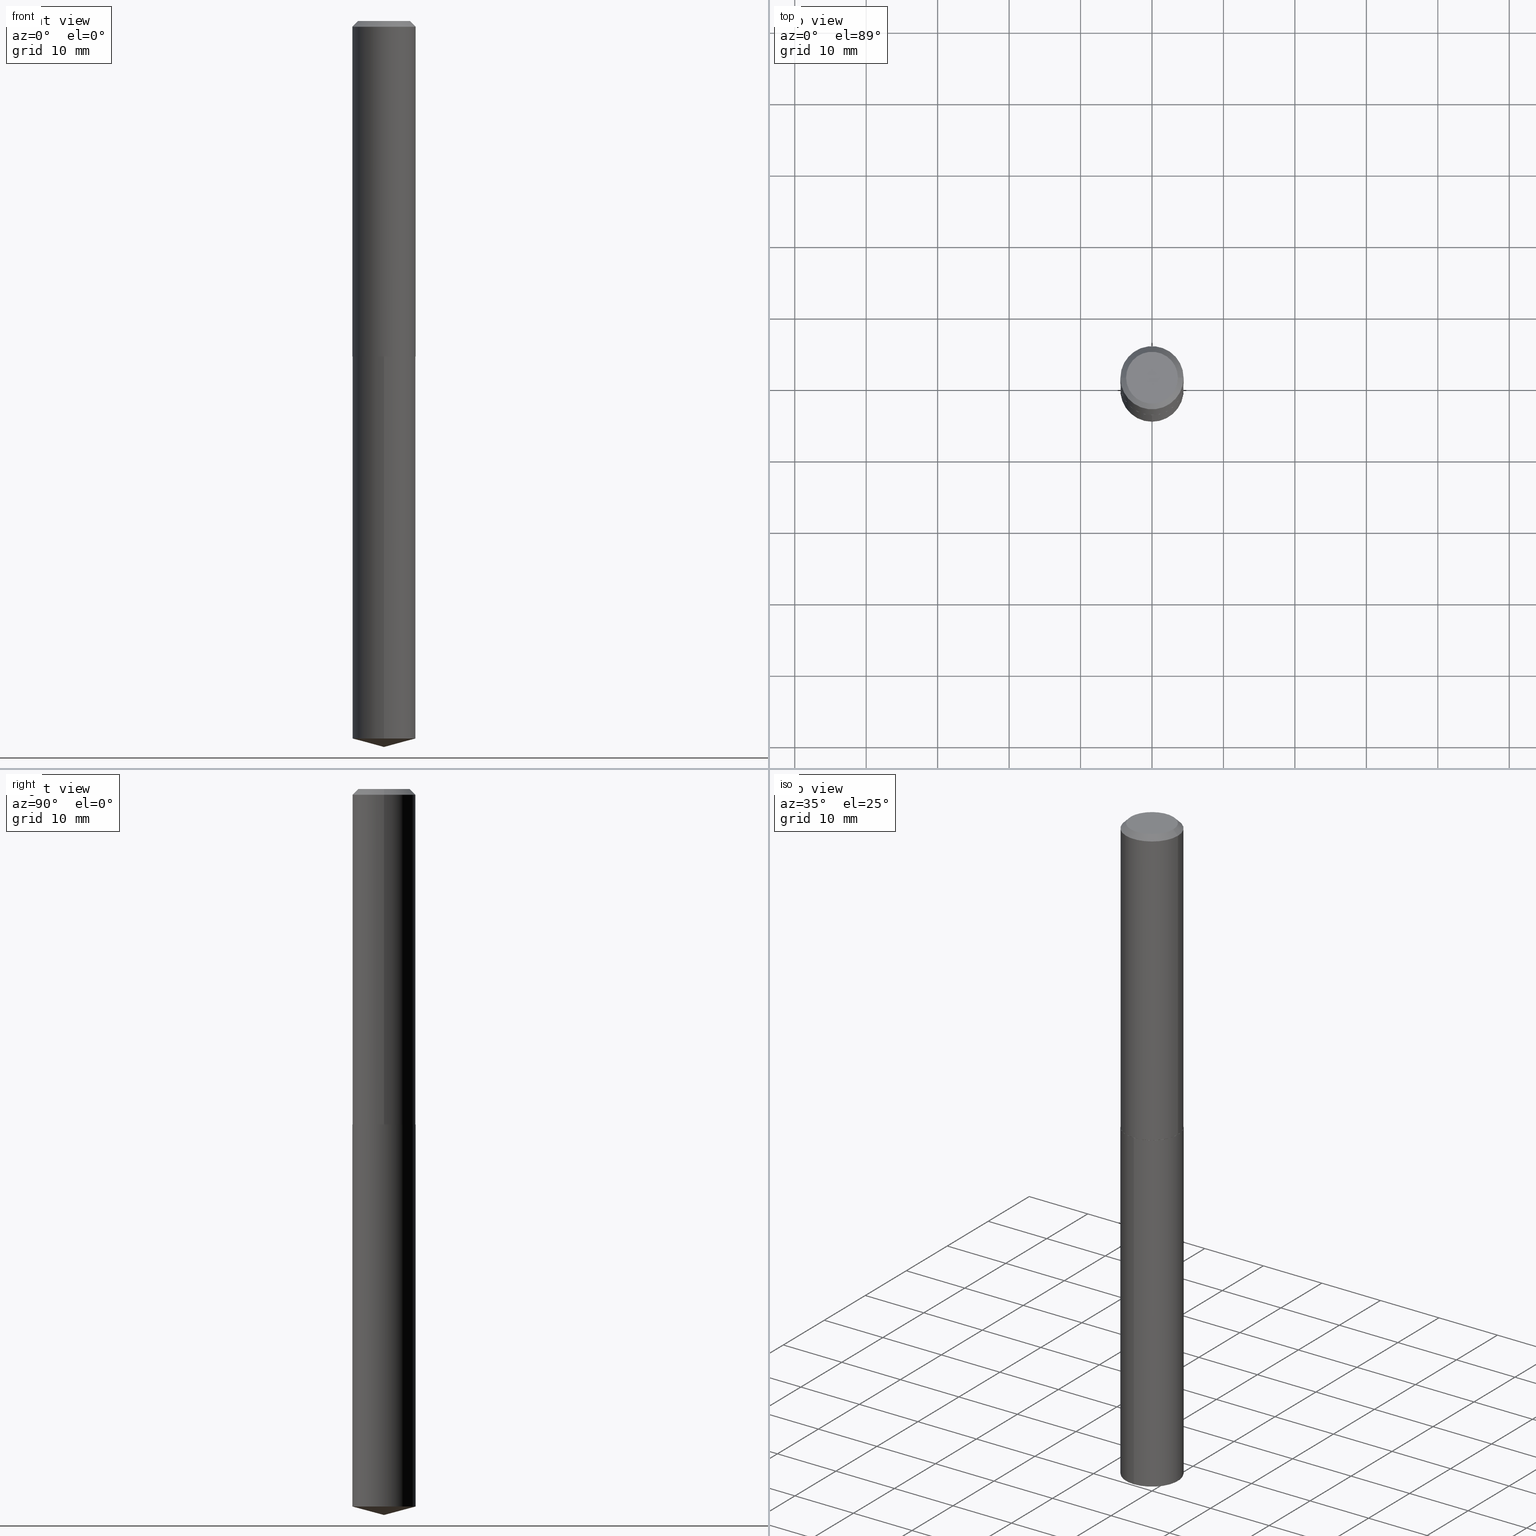
[diagram: canonical four-view strip — front | top / right | iso, engineering-drawing reading convention]
A machine part, canonical four-view strip (front | top / right | iso — engineering-drawing reading convention). The complete STEP part file that produces these views, byte-faithful:
ISO-10303-21;
HEADER;
FILE_DESCRIPTION (( 'STEP AP203' ),
    '1' );
FILE_NAME ('58081.STEP',
    '2024-04-23T01:34:33',
    ( '' ),
    ( '' ),
    'SwSTEP 2.0',
    'SolidWorks 2023',
    '' );
FILE_SCHEMA (( 'CONFIG_CONTROL_DESIGN' ));
ENDSEC;

DATA;
#1 = DIRECTION ( 'NONE',  ( 6.863315791527699781E-15, 0.9659258262890701996, 0.2588190451025136896 ) ) ;
#2 = LINE ( 'NONE', #281, #349 ) ;
#3 =( NAMED_UNIT ( * ) PLANE_ANGLE_UNIT ( ) SI_UNIT ( $, .RADIAN. ) );
#4 = EDGE_LOOP ( 'NONE', ( #314, #303, #30, #224 ) ) ;
#5 = CIRCLE ( 'NONE', #384, 0.1739999999999999880 ) ;
#6 = CARTESIAN_POINT ( 'NONE',  ( 1.236344360222670676E-15, 0.1739999999999935210, -1.848000000000000309 ) ) ;
#7 = LINE ( 'NONE', #128, #267 ) ;
#8 = ORIENTED_EDGE ( 'NONE', *, *, #183, .F. ) ;
#9 = CC_DESIGN_DATE_AND_TIME_ASSIGNMENT ( #321, #371, ( #47 ) ) ;
#10 = DIRECTION ( 'NONE',  ( 2.445482700647825412E-29, -3.491461441181750985E-15, -1.000000000000000000 ) ) ;
#11 = AXIS2_PLACEMENT_3D ( 'NONE', #24, #149, #271 ) ;
#12 = ORGANIZATION ( 'UNSPECIFIED', 'UNSPECIFIED', '' ) ;
#13 = CALENDAR_DATE ( 2024, 22, 4 ) ;
#14 = DIRECTION ( 'NONE',  ( -2.445468806185136597E-29, 3.491481338843145583E-15, 1.000000000000000000 ) ) ;
#15 = PERSON_AND_ORGANIZATION_ROLE ( 'creator' ) ;
#16 = DIRECTION ( 'NONE',  ( -2.445468806185136597E-29, 3.491481338843145583E-15, 1.000000000000000000 ) ) ;
#17 = DIRECTION ( 'NONE',  ( 1.000000000000000000, -6.982962677686265922E-15, 0.000000000000000000 ) ) ;
#18 = CIRCLE ( 'NONE', #245, 0.1740000000000002101 ) ;
#19 = PERSON_AND_ORGANIZATION ( #87, #12 ) ;
#20 = CC_DESIGN_APPROVAL ( #68, ( #47 ) ) ;
#21 = CARTESIAN_POINT ( 'NONE',  ( 0.000000000000000000, 0.000000000000000000, 0.000000000000000000 ) ) ;
#22 = CARTESIAN_POINT ( 'NONE',  ( 4.519226353830132171E-29, -6.452257514182132781E-15, -1.847999999999999865 ) ) ;
#23 = ADVANCED_FACE ( 'NONE', ( #256 ), #93, .T. ) ;
#24 = CARTESIAN_POINT ( 'NONE',  ( 0.000000000000000000, 0.000000000000000000, 0.000000000000000000 ) ) ;
#25 = LINE ( 'NONE', #244, #329 ) ;
#26 = CIRCLE ( 'NONE', #136, 0.1427499999999999603 ) ;
#27 = VERTEX_POINT ( 'NONE', #160 ) ;
#28 = MANIFOLD_SOLID_BREP ( 'Body-Move/Copy2[2]', #365 ) ;
#29 = DIRECTION ( 'NONE',  ( -2.445482700647825692E-29, 3.491461441181750985E-15, 1.000000000000000000 ) ) ;
#30 = ORIENTED_EDGE ( 'NONE', *, *, #385, .T. ) ;
#31 = CIRCLE ( 'NONE', #162, 0.1739999999999999880 ) ;
#32 = DIRECTION ( 'NONE',  ( -2.445482700647825692E-29, 3.491461441181750985E-15, 1.000000000000000000 ) ) ;
#33 = DIRECTION ( 'NONE',  ( -1.000000000000000000, 6.982962677686266711E-15, 0.000000000000000000 ) ) ;
#34 = DIRECTION ( 'NONE',  ( 1.000000000000000000, -6.982962677686266711E-15, 0.000000000000000000 ) ) ;
#35 = ORIENTED_EDGE ( 'NONE', *, *, #116, .F. ) ;
#36 = CARTESIAN_POINT ( 'NONE',  ( -0.1740000000000000990, 1.236344360222575027E-15, -8.558947057043541363E-30 ) ) ;
#37 = PRODUCT_DEFINITION_SHAPE ( 'NONE', 'NONE',  #47 ) ;
#38 = LENGTH_MEASURE_WITH_UNIT ( LENGTH_MEASURE( 0.02539999999999999897 ), #126 );
#39 = ORIENTED_EDGE ( 'NONE', *, *, #262, .T. ) ;
#40 = EDGE_CURVE ( 'NONE', #94, #62, #2, .T. ) ;
#41 = APPROVAL_DATE_TIME ( #235, #68 ) ;
#42 = FACE_OUTER_BOUND ( 'NONE', #340, .T. ) ;
#43 = PERSON_AND_ORGANIZATION ( #87, #12 ) ;
#44 = DIRECTION ( 'NONE',  ( -6.982962677686265133E-15, -1.000000000000000000, 3.140055165131337128E-15 ) ) ;
#45 = AXIS2_PLACEMENT_3D ( 'NONE', #178, #234, #352 ) ;
#46 =( GEOMETRIC_REPRESENTATION_CONTEXT ( 3 ) GLOBAL_UNCERTAINTY_ASSIGNED_CONTEXT ( ( #111 ) ) GLOBAL_UNIT_ASSIGNED_CONTEXT ( ( #167, #3, #248 ) ) REPRESENTATION_CONTEXT ( 'NONE', 'WORKASPACE' ) );
#47 = PRODUCT_DEFINITION ( 'UNKNOWN', '', #246, #107 ) ;
#48 = DATE_AND_TIME ( #209, #380 ) ;
#49 = DIRECTION ( 'NONE',  ( -6.745023994389845444E-15, -0.9659258262890684232, 0.2588190451025204619 ) ) ;
#50 = DATE_TIME_ROLE ( 'classification_date' ) ;
#51 = DIRECTION ( 'NONE',  ( -1.000000000000000000, 6.982962677686266711E-15, 0.000000000000000000 ) ) ;
#52 = APPROVAL_ROLE ( '' ) ;
#53 = DIRECTION ( 'NONE',  ( -2.445468806185136597E-29, 3.491481338843145583E-15, 1.000000000000000000 ) ) ;
#54 = AXIS2_PLACEMENT_3D ( 'NONE', #66, #311, #33 ) ;
#55 = CARTESIAN_POINT ( 'NONE',  ( -1.215035505917364906E-15, -0.1740000000000064273, -1.847999999999999199 ) ) ;
#56 = APPROVAL ( #145, 'UNSPECIFIED' ) ;
#57 = DIRECTION ( 'NONE',  ( -2.438088387897960049E-29, 3.491481338843145188E-15, 1.000000000000000000 ) ) ;
#58 = ORIENTED_EDGE ( 'NONE', *, *, #155, .F. ) ;
#59 = CLOSED_SHELL ( 'NONE', ( #171, #372, #144, #282, #188 ) ) ;
#60 = EDGE_CURVE ( 'NONE', #182, #27, #127, .T. ) ;
#61 = AXIS2_PLACEMENT_3D ( 'NONE', #274, #238, #213 ) ;
#62 = VERTEX_POINT ( 'NONE', #362 ) ;
#63 = EDGE_LOOP ( 'NONE', ( #58, #335, #221, #242 ) ) ;
#64 = DIRECTION ( 'NONE',  ( -2.445482700647825692E-29, 3.491461441181750985E-15, 1.000000000000000000 ) ) ;
#65 = CARTESIAN_POINT ( 'NONE',  ( 7.642090019328602662E-31, -1.091087918388490267E-16, -0.03125000000000020817 ) ) ;
#66 = CARTESIAN_POINT ( 'NONE',  ( 7.642090019328602662E-31, -1.091087918388490267E-16, -0.03125000000000020817 ) ) ;
#67 = CC_DESIGN_APPROVAL ( #56, ( #88 ) ) ;
#68 = APPROVAL ( #172, 'UNSPECIFIED' ) ;
#69 = CARTESIAN_POINT ( 'NONE',  ( -8.649694135657361817E-28, 1.234932293219440106E-13, 35.37007874015748143 ) ) ;
#70 = CARTESIAN_POINT ( 'NONE',  ( 9.781930802591302767E-29, -1.396584576472700394E-14, -4.000000000000000000 ) ) ;
#71 = APPLICATION_PROTOCOL_DEFINITION ( 'international standard', 'config_control_design', 1994, #133 ) ;
#72 = ORIENTED_EDGE ( 'NONE', *, *, #155, .T. ) ;
#73 = ADVANCED_FACE ( 'NONE', ( #252 ), #309, .T. ) ;
#74 = EDGE_LOOP ( 'NONE', ( #361, #185, #200, #327 ) ) ;
#75 = EDGE_LOOP ( 'NONE', ( #285, #101, #289 ) ) ;
#76 = PERSON_AND_ORGANIZATION ( #87, #12 ) ;
#77 = FACE_OUTER_BOUND ( 'NONE', #89, .T. ) ;
#78 = DIRECTION ( 'NONE',  ( 1.000000000000000000, -6.982962677686267499E-15, 4.876176775795936914E-29 ) ) ;
#79 = AXIS2_PLACEMENT_3D ( 'NONE', #22, #29, #353 ) ;
#80 = APPROVAL_PERSON_ORGANIZATION ( #43, #56, #52 ) ;
#81 = LINE ( 'NONE', #208, #300 ) ;
#82 = APPROVAL_DATE_TIME ( #175, #56 ) ;
#83 = FACE_OUTER_BOUND ( 'NONE', #370, .T. ) ;
#84 = PLANE ( 'NONE',  #225 ) ;
#85 = APPROVAL ( #108, 'UNSPECIFIED' ) ;
#86 = VECTOR ( 'NONE', #360, 39.37007874015748143 ) ;
#87 = PERSON ( 'UNSPECIFIED', 'UNSPECIFIED', 'UNSPECIFIED', ('UNSPECIFIED'), ('UNSPECIFIED'), ('UNSPECIFIED') ) ;
#88 = SECURITY_CLASSIFICATION ( '', '', #316 ) ;
#89 = EDGE_LOOP ( 'NONE', ( #356, #368 ) ) ;
#90 = EDGE_LOOP ( 'NONE', ( #312, #72, #216, #336 ) ) ;
#91 = EDGE_CURVE ( 'NONE', #62, #358, #7, .T. ) ;
#92 = ORIENTED_EDGE ( 'NONE', *, *, #138, .F. ) ;
#93 = CONICAL_SURFACE ( 'NONE', #305, 0.1740000000000002101, 0.7853981633972775267 ) ;
#94 = VERTEX_POINT ( 'NONE', #70 ) ;
#95 = CC_DESIGN_PERSON_AND_ORGANIZATION_ASSIGNMENT ( #342, #268, ( #88 ) ) ;
#96 = VECTOR ( 'NONE', #232, 39.37007874015748143 ) ;
#97 = CARTESIAN_POINT ( 'NONE',  ( 0.1740000000000002101, -7.665547279430124304E-15, -1.847499999999999920 ) ) ;
#98 = CC_DESIGN_APPROVAL ( #85, ( #246 ) ) ;
#99 = DIMENSIONAL_EXPONENTS ( 1.000000000000000000, 0.000000000000000000, 0.000000000000000000, 0.000000000000000000, 0.000000000000000000, 0.000000000000000000, 0.000000000000000000 ) ;
#100 = CARTESIAN_POINT ( 'NONE',  ( 9.667888995658995842E-29, -1.380309957200424853E-14, -3.953376840516985347 ) ) ;
#101 = ORIENTED_EDGE ( 'NONE', *, *, #194, .T. ) ;
#102 = VERTEX_POINT ( 'NONE', #97 ) ;
#103 = COORDINATED_UNIVERSAL_TIME_OFFSET ( 5, 0, .BEHIND. ) ;
#104 = DIRECTION ( 'NONE',  ( -2.445468806185136597E-29, 3.491481338843145583E-15, 1.000000000000000000 ) ) ;
#105 = CONICAL_SURFACE ( 'NONE', #45, 146.9311341562572579, 1.308996938995750980 ) ;
#106 = CC_DESIGN_SECURITY_CLASSIFICATION ( #88, ( #246 ) ) ;
#107 = DESIGN_CONTEXT ( 'detailed design', #302, 'design' ) ;
#108 = APPROVAL_STATUS ( 'not_yet_approved' ) ;
#109 = CARTESIAN_POINT ( 'NONE',  ( 4.519226353830132171E-29, -6.452257514182132781E-15, -1.847999999999999865 ) ) ;
#110 = LINE ( 'NONE', #298, #354 ) ;
#111 = UNCERTAINTY_MEASURE_WITH_UNIT (LENGTH_MEASURE( 1.000000000000000082E-05 ), #167, 'distance_accuracy_value', 'NONE');
#112 = DIRECTION ( 'NONE',  ( -2.445482700647825692E-29, 3.491461441181750985E-15, 1.000000000000000000 ) ) ;
#113 = AXIS2_PLACEMENT_3D ( 'NONE', #320, #53, #117 ) ;
#114 = AXIS2_PLACEMENT_3D ( 'NONE', #65, #191, #34 ) ;
#115 = CARTESIAN_POINT ( 'NONE',  ( -1.215035505917313236E-15, -0.1740000000000137270, -3.953376840516984903 ) ) ;
#116 = EDGE_CURVE ( 'NONE', #218, #62, #31, .T. ) ;
#117 = DIRECTION ( 'NONE',  ( 1.000000000000000000, -6.982962677686266711E-15, 0.000000000000000000 ) ) ;
#118 = PLANE ( 'NONE',  #180 ) ;
#119 = AXIS2_PLACEMENT_3D ( 'NONE', #230, #345, #51 ) ;
#120 = CARTESIAN_POINT ( 'NONE',  ( 4.518003619427039369E-29, -6.450511773512711278E-15, -1.847499999999999920 ) ) ;
#121 = ADVANCED_FACE ( 'NONE', ( #323 ), #142, .F. ) ;
#122 = ORIENTED_EDGE ( 'NONE', *, *, #276, .F. ) ;
#123 = CARTESIAN_POINT ( 'NONE',  ( 0.1427499999999999603, -1.141085766316490663E-15, 2.571758278284192552E-19 ) ) ;
#124 = CIRCLE ( 'NONE', #341, 0.1735000000000002096 ) ;
#125 = CC_DESIGN_PERSON_AND_ORGANIZATION_ASSIGNMENT ( #257, #376, ( #169 ) ) ;
#126 =( LENGTH_UNIT ( ) NAMED_UNIT ( * ) SI_UNIT ( $, .METRE. ) );
#127 = LINE ( 'NONE', #36, #286 ) ;
#128 = CARTESIAN_POINT ( 'NONE',  ( 1.236344360222619006E-15, 0.1739999999999935210, -1.848000000000000309 ) ) ;
#129 = DIRECTION ( 'NONE',  ( 1.000000000000000000, 0.000000000000000000, 0.000000000000000000 ) ) ;
#130 = AXIS2_PLACEMENT_3D ( 'NONE', #21, #348, #78 ) ;
#131 = DIRECTION ( 'NONE',  ( -2.445468806185136877E-29, 3.491481338843145188E-15, 1.000000000000000000 ) ) ;
#132 = CARTESIAN_POINT ( 'NONE',  ( 4.518003619427039369E-29, -6.450511773512711278E-15, -1.847499999999999920 ) ) ;
#133 = APPLICATION_CONTEXT ( 'configuration controlled 3d designs of mechanical parts and assemblies' ) ;
#134 = ORIENTED_EDGE ( 'NONE', *, *, #276, .T. ) ;
#135 = LINE ( 'NONE', #204, #272 ) ;
#136 = AXIS2_PLACEMENT_3D ( 'NONE', #375, #14, #269 ) ;
#137 = PERSON_AND_ORGANIZATION ( #87, #12 ) ;
#138 = EDGE_CURVE ( 'NONE', #288, #358, #186, .T. ) ;
#139 = DIRECTION ( 'NONE',  ( -2.445468806185136597E-29, 3.491481338843145583E-15, 1.000000000000000000 ) ) ;
#140 = DIRECTION ( 'NONE',  ( -2.445482700647825972E-29, 3.491461441181750985E-15, 1.000000000000000000 ) ) ;
#141 = COORDINATED_UNIVERSAL_TIME_OFFSET ( 5, 0, .BEHIND. ) ;
#142 = PLANE ( 'NONE',  #240 ) ;
#143 = AXIS2_PLACEMENT_3D ( 'NONE', #261, #237, #179 ) ;
#144 = ADVANCED_FACE ( 'NONE', ( #173 ), #105, .T. ) ;
#145 = APPROVAL_STATUS ( 'not_yet_approved' ) ;
#146 = CARTESIAN_POINT ( 'NONE',  ( 4.518003619427039369E-29, -6.450511773512711278E-15, -1.847499999999999920 ) ) ;
#147 = DIRECTION ( 'NONE',  ( 1.000000000000000000, -6.982962677686265922E-15, 4.876176775795935793E-29 ) ) ;
#148 = EDGE_CURVE ( 'NONE', #283, #247, #251, .T. ) ;
#149 = DIRECTION ( 'NONE',  ( -2.445468806185136597E-29, 3.491481338843145583E-15, 1.000000000000000000 ) ) ;
#150 = CONICAL_SURFACE ( 'NONE', #306, 146.9311341562572579, 1.308996938995750980 ) ;
#151 = CARTESIAN_POINT ( 'NONE',  ( -0.1735000000000002096, -5.216816640464247057E-15, -1.848000000000000087 ) ) ;
#152 = CARTESIAN_POINT ( 'NONE',  ( 2.487343155591107533E-29, -9.362029901670060756E-15, -1.848000000000000087 ) ) ;
#153 = FACE_OUTER_BOUND ( 'NONE', #74, .T. ) ;
#154 = EDGE_LOOP ( 'NONE', ( #219, #386, #197, #122 ) ) ;
#155 = EDGE_CURVE ( 'NONE', #283, #182, #81, .T. ) ;
#156 = ORIENTED_EDGE ( 'NONE', *, *, #202, .F. ) ;
#157 = ORIENTED_EDGE ( 'NONE', *, *, #346, .T. ) ;
#158 = CARTESIAN_POINT ( 'NONE',  ( 0.000000000000000000, 0.000000000000000000, 0.000000000000000000 ) ) ;
#159 = EDGE_CURVE ( 'NONE', #275, #243, #26, .T. ) ;
#160 = CARTESIAN_POINT ( 'NONE',  ( -0.1739999999999999880, -2.043465922453203979E-15, -0.03125000000000020817 ) ) ;
#161 = DIRECTION ( 'NONE',  ( -2.445468806185136597E-29, 3.491481338843145583E-15, 1.000000000000000000 ) ) ;
#162 = AXIS2_PLACEMENT_3D ( 'NONE', #165, #112, #44 ) ;
#163 = MANIFOLD_SOLID_BREP ( 'Body-Move/Copy2[1]', #59 ) ;
#164 = AXIS2_PLACEMENT_3D ( 'NONE', #158, #284, #129 ) ;
#165 = CARTESIAN_POINT ( 'NONE',  ( 9.667888995658995842E-29, -1.380309957200424853E-14, -3.953376840516985347 ) ) ;
#166 = APPROVAL_PERSON_ORGANIZATION ( #137, #85, #265 ) ;
#167 =( CONVERSION_BASED_UNIT ( 'INCH', #38 ) LENGTH_UNIT ( ) NAMED_UNIT ( #99 ) );
#168 = ORIENTED_EDGE ( 'NONE', *, *, #159, .F. ) ;
#169 = PRODUCT ( '58081', '58081', '', ( #196 ) ) ;
#170 = DIRECTION ( 'NONE',  ( -2.445482700647825692E-29, 3.491461441181750985E-15, 1.000000000000000000 ) ) ;
#171 = ADVANCED_FACE ( 'NONE', ( #42 ), #266, .T. ) ;
#172 = APPROVAL_STATUS ( 'not_yet_approved' ) ;
#173 = FACE_OUTER_BOUND ( 'NONE', #75, .T. ) ;
#174 = CIRCLE ( 'NONE', #378, 0.1740000000000002101 ) ;
#175 = DATE_AND_TIME ( #292, #366 ) ;
#176 = DIRECTION ( 'NONE',  ( 1.000000000000000000, -6.982962677686269077E-15, 0.000000000000000000 ) ) ;
#177 = COORDINATED_UNIVERSAL_TIME_OFFSET ( 5, 0, .BEHIND. ) ;
#178 = CARTESIAN_POINT ( 'NONE',  ( -8.649694135657361817E-28, 1.234932293219440106E-13, 35.37007874015748143 ) ) ;
#179 = DIRECTION ( 'NONE',  ( -6.982962677686265133E-15, -1.000000000000000000, 3.140055165131337128E-15 ) ) ;
#180 = AXIS2_PLACEMENT_3D ( 'NONE', #152, #57, #147 ) ;
#181 = CYLINDRICAL_SURFACE ( 'NONE', #11, 0.1740000000000000990 ) ;
#182 = VERTEX_POINT ( 'NONE', #322 ) ;
#183 = EDGE_CURVE ( 'NONE', #27, #193, #199, .T. ) ;
#184 = FACE_OUTER_BOUND ( 'NONE', #315, .T. ) ;
#185 = ORIENTED_EDGE ( 'NONE', *, *, #359, .T. ) ;
#186 = CIRCLE ( 'NONE', #143, 0.1739999999999999880 ) ;
#187 = ORIENTED_EDGE ( 'NONE', *, *, #194, .F. ) ;
#188 = ADVANCED_FACE ( 'NONE', ( #77 ), #84, .F. ) ;
#189 = CARTESIAN_POINT ( 'NONE',  ( -0.1739999999999999880, 1.105926714078561165E-15, -0.03125000000000020817 ) ) ;
#190 = CONICAL_SURFACE ( 'NONE', #61, 0.1740000000000002101, 0.7853981633972775267 ) ;
#191 = DIRECTION ( 'NONE',  ( -2.445468806185136597E-29, 3.491481338843145583E-15, 1.000000000000000000 ) ) ;
#192 = LOCAL_TIME ( 21, 34, 33.00000000000000000, #347 ) ;
#193 = VERTEX_POINT ( 'NONE', #377 ) ;
#194 = EDGE_CURVE ( 'NONE', #94, #218, #135, .T. ) ;
#195 = EDGE_LOOP ( 'NONE', ( #157, #222 ) ) ;
#196 = MECHANICAL_CONTEXT ( 'NONE', #133, 'mechanical' ) ;
#197 = ORIENTED_EDGE ( 'NONE', *, *, #388, .F. ) ;
#198 = FACE_OUTER_BOUND ( 'NONE', #343, .T. ) ;
#199 = CIRCLE ( 'NONE', #113, 0.1739999999999999880 ) ;
#200 = ORIENTED_EDGE ( 'NONE', *, *, #202, .T. ) ;
#201 = ORIENTED_EDGE ( 'NONE', *, *, #60, .F. ) ;
#202 = EDGE_CURVE ( 'NONE', #218, #288, #110, .T. ) ;
#203 = PERSON_AND_ORGANIZATION ( #87, #12 ) ;
#204 = CARTESIAN_POINT ( 'NONE',  ( 9.781879448657205289E-29, -1.396591930648351888E-14, -4.000000000000000000 ) ) ;
#205 = DIRECTION ( 'NONE',  ( -2.445468806185136597E-29, 3.491481338843145583E-15, 1.000000000000000000 ) ) ;
#206 = ADVANCED_FACE ( 'NONE', ( #299 ), #293, .T. ) ;
#207 = COORDINATED_UNIVERSAL_TIME_OFFSET ( 5, 0, .BEHIND. ) ;
#208 = CARTESIAN_POINT ( 'NONE',  ( -0.1740000000000002101, -5.214167413290135067E-15, -1.847499999999999920 ) ) ;
#209 = CALENDAR_DATE ( 2024, 22, 4 ) ;
#210 = DIRECTION ( 'NONE',  ( 6.982962677686265922E-15, 1.000000000000000000, -3.491461441181750985E-15 ) ) ;
#211 = DIRECTION ( 'NONE',  ( -0.7071067811864267805, 7.493145998869918709E-15, 0.7071067811866682540 ) ) ;
#212 = AXIS2_PLACEMENT_3D ( 'NONE', #367, #287, #220 ) ;
#213 = DIRECTION ( 'NONE',  ( 1.000000000000000000, -6.982962677686269077E-15, 0.000000000000000000 ) ) ;
#214 = EDGE_CURVE ( 'NONE', #247, #102, #295, .T. ) ;
#215 = ORIENTED_EDGE ( 'NONE', *, *, #40, .T. ) ;
#216 = ORIENTED_EDGE ( 'NONE', *, *, #239, .F. ) ;
#217 = CARTESIAN_POINT ( 'NONE',  ( 0.1740000000000000990, -1.215035505917411252E-15, 8.484547589884934838E-30 ) ) ;
#218 = VERTEX_POINT ( 'NONE', #115 ) ;
#219 = ORIENTED_EDGE ( 'NONE', *, *, #239, .T. ) ;
#220 = DIRECTION ( 'NONE',  ( 1.000000000000000000, -6.982962677686265922E-15, 4.876170438487578859E-29 ) ) ;
#221 = ORIENTED_EDGE ( 'NONE', *, *, #214, .T. ) ;
#222 = ORIENTED_EDGE ( 'NONE', *, *, #159, .T. ) ;
#223 = ORIENTED_EDGE ( 'NONE', *, *, #385, .F. ) ;
#224 = ORIENTED_EDGE ( 'NONE', *, *, #183, .T. ) ;
#225 = AXIS2_PLACEMENT_3D ( 'NONE', #317, #10, #210 ) ;
#226 = ADVANCED_FACE ( 'NONE', ( #83 ), #236, .T. ) ;
#227 = APPROVAL_PERSON_ORGANIZATION ( #76, #68, #290 ) ;
#228 = DIRECTION ( 'NONE',  ( 1.000000000000000000, -6.982962677686269077E-15, 0.000000000000000000 ) ) ;
#229 = CALENDAR_DATE ( 2024, 22, 4 ) ;
#230 = CARTESIAN_POINT ( 'NONE',  ( 7.642090019328602662E-31, -1.091087918388490267E-16, -0.03125000000000020817 ) ) ;
#231 = CALENDAR_DATE ( 2024, 22, 4 ) ;
#232 = DIRECTION ( 'NONE',  ( 0.7071067811864267805, -2.468850131080992517E-15, 0.7071067811866682540 ) ) ;
#233 = CC_DESIGN_DATE_AND_TIME_ASSIGNMENT ( #48, #50, ( #88 ) ) ;
#234 = DIRECTION ( 'NONE',  ( -2.445482700647825692E-29, 3.491461441181750985E-15, 1.000000000000000000 ) ) ;
#235 = DATE_AND_TIME ( #229, #332 ) ;
#236 = CYLINDRICAL_SURFACE ( 'NONE', #130, 0.1740000000000000990 ) ;
#237 = DIRECTION ( 'NONE',  ( -2.445482700647825692E-29, 3.491461441181750985E-15, 1.000000000000000000 ) ) ;
#238 = DIRECTION ( 'NONE',  ( -2.445468806185136597E-29, 3.491481338843145583E-15, 1.000000000000000000 ) ) ;
#239 = EDGE_CURVE ( 'NONE', #102, #182, #174, .T. ) ;
#240 = AXIS2_PLACEMENT_3D ( 'NONE', #351, #373, #259 ) ;
#241 = CYLINDRICAL_SURFACE ( 'NONE', #79, 0.1739999999999999880 ) ;
#242 = ORIENTED_EDGE ( 'NONE', *, *, #324, .F. ) ;
#243 = VERTEX_POINT ( 'NONE', #264 ) ;
#244 = CARTESIAN_POINT ( 'NONE',  ( 0.1739999999999999880, -1.302835443451095394E-15, -0.03125000000000020817 ) ) ;
#245 = AXIS2_PLACEMENT_3D ( 'NONE', #120, #161, #390 ) ;
#246 = PRODUCT_DEFINITION_FORMATION_WITH_SPECIFIED_SOURCE ( 'ANY', '', #169, .NOT_KNOWN. ) ;
#247 = VERTEX_POINT ( 'NONE', #382 ) ;
#248 =( NAMED_UNIT ( * ) SI_UNIT ( $, .STERADIAN. ) SOLID_ANGLE_UNIT ( ) );
#249 = EDGE_LOOP ( 'NONE', ( #168, #39, #338, #223 ) ) ;
#250 = PRODUCT_RELATED_PRODUCT_CATEGORY ( 'detail', '', ( #169 ) ) ;
#251 = CIRCLE ( 'NONE', #331, 0.1735000000000002096 ) ;
#252 = FACE_OUTER_BOUND ( 'NONE', #249, .T. ) ;
#253 = ORIENTED_EDGE ( 'NONE', *, *, #324, .T. ) ;
#254 = EDGE_CURVE ( 'NONE', #247, #283, #124, .T. ) ;
#255 = DIRECTION ( 'NONE',  ( -6.982962677686266711E-15, -1.000000000000000000, 3.510303681827586791E-15 ) ) ;
#256 = FACE_OUTER_BOUND ( 'NONE', #90, .T. ) ;
#257 = PERSON_AND_ORGANIZATION ( #87, #12 ) ;
#258 = AXIS2_PLACEMENT_3D ( 'NONE', #100, #64, #339 ) ;
#259 = DIRECTION ( 'NONE',  ( -1.000000000000000000, 6.982962677686265922E-15, -4.876176775795935793E-29 ) ) ;
#260 = APPLICATION_PROTOCOL_DEFINITION ( 'international standard', 'config_control_design', 1994, #302 ) ;
#261 = CARTESIAN_POINT ( 'NONE',  ( 4.519226353830132171E-29, -6.452257514182132781E-15, -1.847999999999999865 ) ) ;
#262 = EDGE_CURVE ( 'NONE', #275, #193, #25, .T. ) ;
#263 = DATE_AND_TIME ( #231, #280 ) ;
#264 = CARTESIAN_POINT ( 'NONE',  ( -0.1427499999999999603, 1.051372318159137798E-15, 2.571758278137824765E-19 ) ) ;
#265 = APPROVAL_ROLE ( '' ) ;
#266 = CYLINDRICAL_SURFACE ( 'NONE', #325, 0.1739999999999999880 ) ;
#267 = VECTOR ( 'NONE', #363, 39.37007874015748143 ) ;
#268 = PERSON_AND_ORGANIZATION_ROLE ( 'classification_officer' ) ;
#269 = DIRECTION ( 'NONE',  ( 1.000000000000000000, -6.982962677686265922E-15, 4.876170438487578859E-29 ) ) ;
#270 = EDGE_CURVE ( 'NONE', #358, #288, #5, .T. ) ;
#271 = DIRECTION ( 'NONE',  ( 1.000000000000000000, -6.982962677686267499E-15, 4.876176775795936914E-29 ) ) ;
#272 = VECTOR ( 'NONE', #49, 39.37007874015748143 ) ;
#273 = CIRCLE ( 'NONE', #114, 0.1739999999999999880 ) ;
#274 = CARTESIAN_POINT ( 'NONE',  ( 4.518003619427039369E-29, -6.450511773512711278E-15, -1.847499999999999920 ) ) ;
#275 = VERTEX_POINT ( 'NONE', #123 ) ;
#276 = EDGE_CURVE ( 'NONE', #102, #193, #328, .T. ) ;
#277 = DIRECTION ( 'NONE',  ( 0.7071067811865452413, -7.319954787623248157E-15, -0.7071067811865497932 ) ) ;
#278 = FACE_OUTER_BOUND ( 'NONE', #63, .T. ) ;
#279 = CIRCLE ( 'NONE', #212, 0.1427499999999999603 ) ;
#280 = LOCAL_TIME ( 21, 34, 33.00000000000000000, #177 ) ;
#281 = CARTESIAN_POINT ( 'NONE',  ( 9.781931252904687392E-29, -1.396584576472700552E-14, -4.000000000000000000 ) ) ;
#282 = ADVANCED_FACE ( 'NONE', ( #153 ), #241, .T. ) ;
#283 = VERTEX_POINT ( 'NONE', #151 ) ;
#284 = DIRECTION ( 'NONE',  ( 0.000000000000000000, 0.000000000000000000, 1.000000000000000000 ) ) ;
#285 = ORIENTED_EDGE ( 'NONE', *, *, #40, .F. ) ;
#286 = VECTOR ( 'NONE', #131, 39.37007874015748143 ) ;
#287 = DIRECTION ( 'NONE',  ( -2.445468806185136597E-29, 3.491481338843145583E-15, 1.000000000000000000 ) ) ;
#288 = VERTEX_POINT ( 'NONE', #55 ) ;
#289 = ORIENTED_EDGE ( 'NONE', *, *, #359, .F. ) ;
#290 = APPROVAL_ROLE ( '' ) ;
#291 = DIRECTION ( 'NONE',  ( -6.982962677686265133E-15, -1.000000000000000000, 3.140055165131337128E-15 ) ) ;
#292 = CALENDAR_DATE ( 2024, 22, 4 ) ;
#293 = CONICAL_SURFACE ( 'NONE', #119, 0.1739999999999999880, 0.7853981633974450594 ) ;
#294 = VECTOR ( 'NONE', #308, 39.37007874015748143 ) ;
#295 = LINE ( 'NONE', #381, #96 ) ;
#296 = SHAPE_DEFINITION_REPRESENTATION ( #37, #337 ) ;
#297 = CARTESIAN_POINT ( 'NONE',  ( 4.519226353830132731E-29, -6.452257514182133570E-15, -1.848000000000000087 ) ) ;
#298 = CARTESIAN_POINT ( 'NONE',  ( -1.215035505917364906E-15, -0.1740000000000064273, -1.847999999999999199 ) ) ;
#299 = FACE_OUTER_BOUND ( 'NONE', #4, .T. ) ;
#300 = VECTOR ( 'NONE', #211, 39.37007874015748143 ) ;
#301 = ADVANCED_FACE ( 'NONE', ( #184 ), #118, .F. ) ;
#302 = APPLICATION_CONTEXT ( 'configuration controlled 3d designs of mechanical parts and assemblies' ) ;
#303 = ORIENTED_EDGE ( 'NONE', *, *, #346, .F. ) ;
#304 = CC_DESIGN_PERSON_AND_ORGANIZATION_ASSIGNMENT ( #319, #374, ( #246 ) ) ;
#305 = AXIS2_PLACEMENT_3D ( 'NONE', #132, #104, #228 ) ;
#306 = AXIS2_PLACEMENT_3D ( 'NONE', #69, #32, #255 ) ;
#307 = DIRECTION ( 'NONE',  ( -2.445482700647825692E-29, 3.491461441181750985E-15, 1.000000000000000000 ) ) ;
#308 = DIRECTION ( 'NONE',  ( -0.7071067811865452413, 2.468850131082233000E-15, -0.7071067811865497932 ) ) ;
#309 = CONICAL_SURFACE ( 'NONE', #54, 0.1739999999999999880, 0.7853981633974450594 ) ;
#310 = ADVANCED_FACE ( 'NONE', ( #278 ), #190, .T. ) ;
#311 = DIRECTION ( 'NONE',  ( 2.445468806185136597E-29, -3.491481338843145583E-15, -1.000000000000000000 ) ) ;
#312 = ORIENTED_EDGE ( 'NONE', *, *, #254, .T. ) ;
#313 = ORIENTED_EDGE ( 'NONE', *, *, #254, .F. ) ;
#314 = ORIENTED_EDGE ( 'NONE', *, *, #262, .F. ) ;
#315 = EDGE_LOOP ( 'NONE', ( #313, #369 ) ) ;
#316 = SECURITY_CLASSIFICATION_LEVEL ( 'unclassified' ) ;
#317 = CARTESIAN_POINT ( 'NONE',  ( 4.519226353830132171E-29, -6.452257514182132781E-15, -1.847999999999999865 ) ) ;
#318 = ADVANCED_FACE ( 'NONE', ( #326 ), #181, .T. ) ;
#319 = PERSON_AND_ORGANIZATION ( #87, #12 ) ;
#320 = CARTESIAN_POINT ( 'NONE',  ( 7.642090019328602662E-31, -1.091087918388490267E-16, -0.03125000000000020817 ) ) ;
#321 = DATE_AND_TIME ( #13, #192 ) ;
#322 = CARTESIAN_POINT ( 'NONE',  ( -0.1740000000000002101, -5.214167413290135067E-15, -1.847499999999999920 ) ) ;
#323 = FACE_OUTER_BOUND ( 'NONE', #195, .T. ) ;
#324 = EDGE_CURVE ( 'NONE', #182, #102, #18, .T. ) ;
#325 = AXIS2_PLACEMENT_3D ( 'NONE', #109, #170, #291 ) ;
#326 = FACE_OUTER_BOUND ( 'NONE', #154, .T. ) ;
#327 = ORIENTED_EDGE ( 'NONE', *, *, #270, .F. ) ;
#328 = LINE ( 'NONE', #217, #86 ) ;
#329 = VECTOR ( 'NONE', #277, 39.37007874015748143 ) ;
#330 = ORIENTED_EDGE ( 'NONE', *, *, #91, .T. ) ;
#331 = AXIS2_PLACEMENT_3D ( 'NONE', #350, #139, #17 ) ;
#332 = LOCAL_TIME ( 21, 34, 33.00000000000000000, #207 ) ;
#333 = CC_DESIGN_PERSON_AND_ORGANIZATION_ASSIGNMENT ( #203, #379, ( #246 ) ) ;
#334 = LINE ( 'NONE', #189, #294 ) ;
#335 = ORIENTED_EDGE ( 'NONE', *, *, #148, .T. ) ;
#336 = ORIENTED_EDGE ( 'NONE', *, *, #214, .F. ) ;
#337 = ADVANCED_BREP_SHAPE_REPRESENTATION ( '58081', ( #163, #28, #164 ), #46 ) ;
#338 = ORIENTED_EDGE ( 'NONE', *, *, #388, .T. ) ;
#339 = DIRECTION ( 'NONE',  ( -6.982962677686265133E-15, -1.000000000000000000, 3.140055165131337128E-15 ) ) ;
#340 = EDGE_LOOP ( 'NONE', ( #355, #330, #92, #156 ) ) ;
#341 = AXIS2_PLACEMENT_3D ( 'NONE', #297, #16, #357 ) ;
#342 = PERSON_AND_ORGANIZATION ( #87, #12 ) ;
#343 = EDGE_LOOP ( 'NONE', ( #187, #215, #35 ) ) ;
#344 = APPROVAL_DATE_TIME ( #263, #85 ) ;
#345 = DIRECTION ( 'NONE',  ( 2.445468806185136597E-29, -3.491481338843145583E-15, -1.000000000000000000 ) ) ;
#346 = EDGE_CURVE ( 'NONE', #243, #275, #279, .T. ) ;
#347 = COORDINATED_UNIVERSAL_TIME_OFFSET ( 5, 0, .BEHIND. ) ;
#348 = DIRECTION ( 'NONE',  ( -2.445468806185136597E-29, 3.491481338843145583E-15, 1.000000000000000000 ) ) ;
#349 = VECTOR ( 'NONE', #1, 39.37007874015748143 ) ;
#350 = CARTESIAN_POINT ( 'NONE',  ( 4.519226353830132731E-29, -6.452257514182133570E-15, -1.848000000000000087 ) ) ;
#351 = CARTESIAN_POINT ( 'NONE',  ( -3.144577323204793631E-48, 4.489623018191823374E-34, 1.285879139104721198E-19 ) ) ;
#352 = DIRECTION ( 'NONE',  ( -6.982962677686266711E-15, -1.000000000000000000, 3.510303681827586791E-15 ) ) ;
#353 = DIRECTION ( 'NONE',  ( -6.982962677686265133E-15, -1.000000000000000000, 3.140055165131337128E-15 ) ) ;
#354 = VECTOR ( 'NONE', #140, 39.37007874015748143 ) ;
#355 = ORIENTED_EDGE ( 'NONE', *, *, #116, .T. ) ;
#356 = ORIENTED_EDGE ( 'NONE', *, *, #138, .T. ) ;
#357 = DIRECTION ( 'NONE',  ( 1.000000000000000000, -6.982962677686265922E-15, 0.000000000000000000 ) ) ;
#358 = VERTEX_POINT ( 'NONE', #6 ) ;
#359 = EDGE_CURVE ( 'NONE', #62, #218, #389, .T. ) ;
#360 = DIRECTION ( 'NONE',  ( -2.445468806185136877E-29, 3.491481338843145188E-15, 1.000000000000000000 ) ) ;
#361 = ORIENTED_EDGE ( 'NONE', *, *, #91, .F. ) ;
#362 = CARTESIAN_POINT ( 'NONE',  ( 1.236344360222670479E-15, 0.1739999999999861380, -3.953376840516985791 ) ) ;
#363 = DIRECTION ( 'NONE',  ( -2.445482700647825972E-29, 3.491461441181750985E-15, 1.000000000000000000 ) ) ;
#364 = CC_DESIGN_PERSON_AND_ORGANIZATION_ASSIGNMENT ( #19, #15, ( #47 ) ) ;
#365 = CLOSED_SHELL ( 'NONE', ( #73, #318, #23, #301, #310, #226, #206, #121 ) ) ;
#366 = LOCAL_TIME ( 21, 34, 33.00000000000000000, #103 ) ;
#367 = CARTESIAN_POINT ( 'NONE',  ( -6.289154646409587262E-48, 8.979246036383646749E-34, 2.571758278209442396E-19 ) ) ;
#368 = ORIENTED_EDGE ( 'NONE', *, *, #270, .T. ) ;
#369 = ORIENTED_EDGE ( 'NONE', *, *, #148, .F. ) ;
#370 = EDGE_LOOP ( 'NONE', ( #201, #253, #134, #8 ) ) ;
#371 = DATE_TIME_ROLE ( 'creation_date' ) ;
#372 = ADVANCED_FACE ( 'NONE', ( #198 ), #150, .T. ) ;
#373 = DIRECTION ( 'NONE',  ( 2.438088387897960049E-29, -3.491481338843145188E-15, -1.000000000000000000 ) ) ;
#374 = PERSON_AND_ORGANIZATION_ROLE ( 'design_supplier' ) ;
#375 = CARTESIAN_POINT ( 'NONE',  ( -6.289154646409587262E-48, 8.979246036383646749E-34, 2.571758278209442396E-19 ) ) ;
#376 = PERSON_AND_ORGANIZATION_ROLE ( 'design_owner' ) ;
#377 = CARTESIAN_POINT ( 'NONE',  ( 0.1739999999999999880, -1.324144297756259366E-15, -0.03125000000000020817 ) ) ;
#378 = AXIS2_PLACEMENT_3D ( 'NONE', #146, #205, #176 ) ;
#379 = PERSON_AND_ORGANIZATION_ROLE ( 'creator' ) ;
#380 = LOCAL_TIME ( 21, 34, 33.00000000000000000, #141 ) ;
#381 = CARTESIAN_POINT ( 'NONE',  ( 0.1740000000000002101, -7.665547279430124304E-15, -1.847499999999999920 ) ) ;
#382 = CARTESIAN_POINT ( 'NONE',  ( 0.1735000000000002096, -7.663801538760702012E-15, -1.848000000000000087 ) ) ;
#383 = DIRECTION ( 'NONE',  ( -6.982962677686265133E-15, -1.000000000000000000, 3.140055165131337128E-15 ) ) ;
#384 = AXIS2_PLACEMENT_3D ( 'NONE', #387, #307, #383 ) ;
#385 = EDGE_CURVE ( 'NONE', #243, #27, #334, .T. ) ;
#386 = ORIENTED_EDGE ( 'NONE', *, *, #60, .T. ) ;
#387 = CARTESIAN_POINT ( 'NONE',  ( 4.519226353830132171E-29, -6.452257514182132781E-15, -1.847999999999999865 ) ) ;
#388 = EDGE_CURVE ( 'NONE', #193, #27, #273, .T. ) ;
#389 = CIRCLE ( 'NONE', #258, 0.1739999999999999880 ) ;
#390 = DIRECTION ( 'NONE',  ( 1.000000000000000000, -6.982962677686269077E-15, 0.000000000000000000 ) ) ;
ENDSEC;
END-ISO-10303-21;
